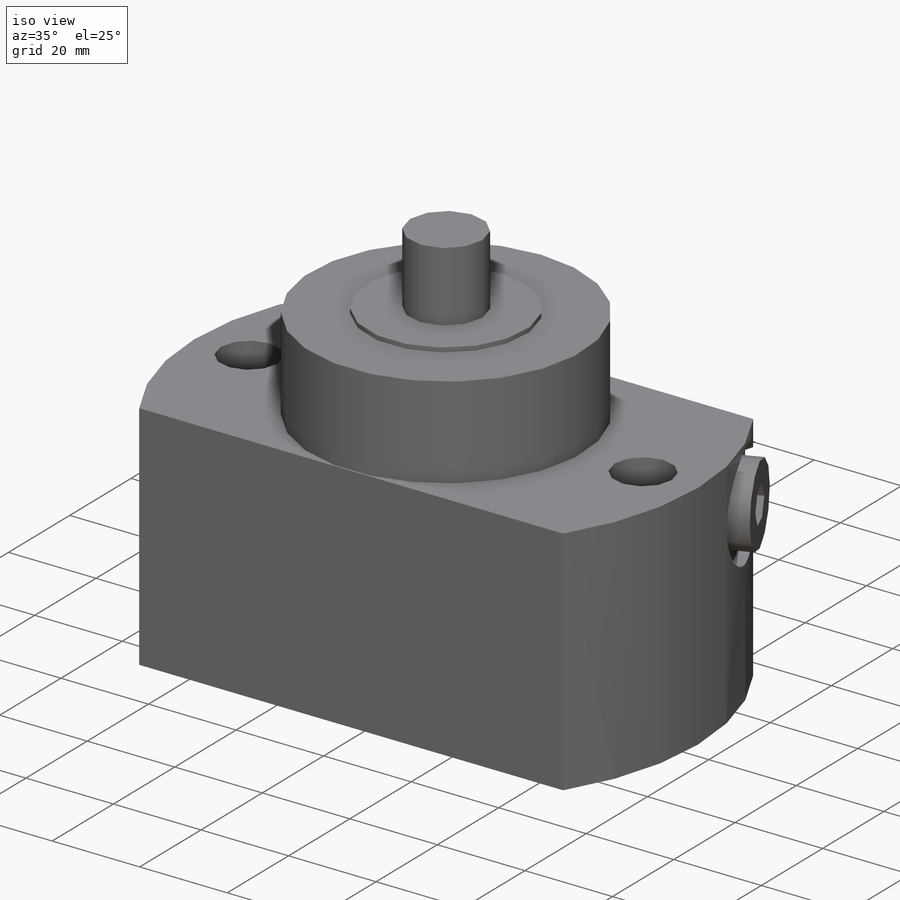
[diagram: iso view]
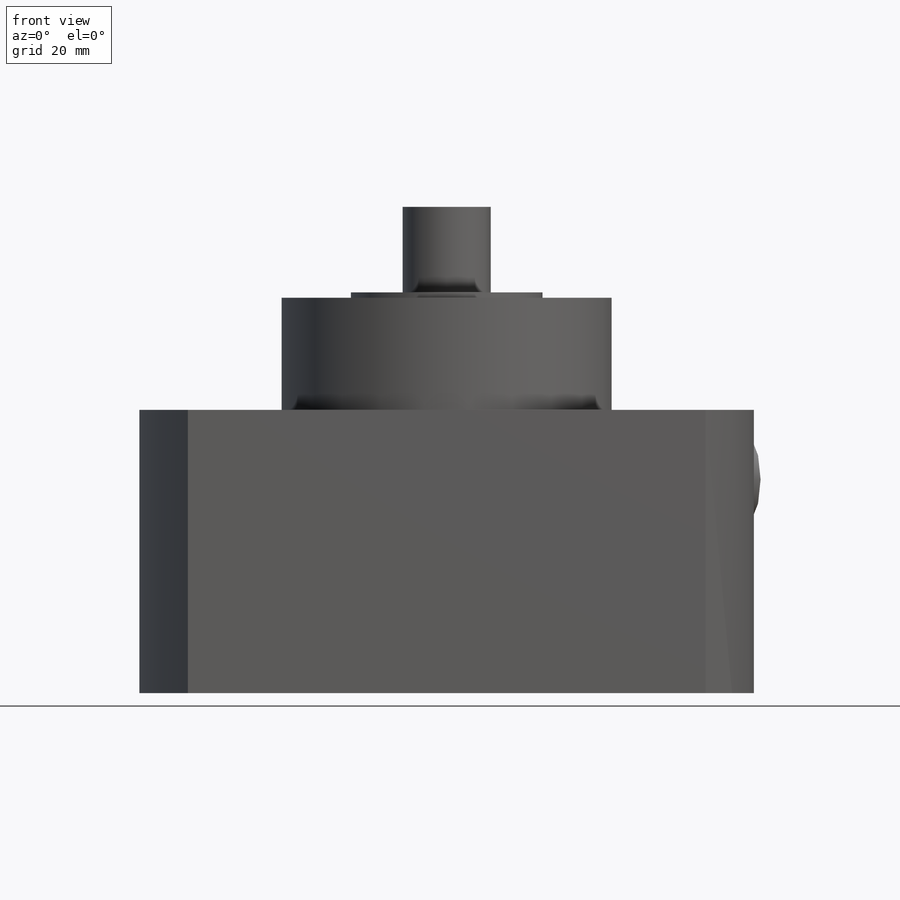
[diagram: front view]
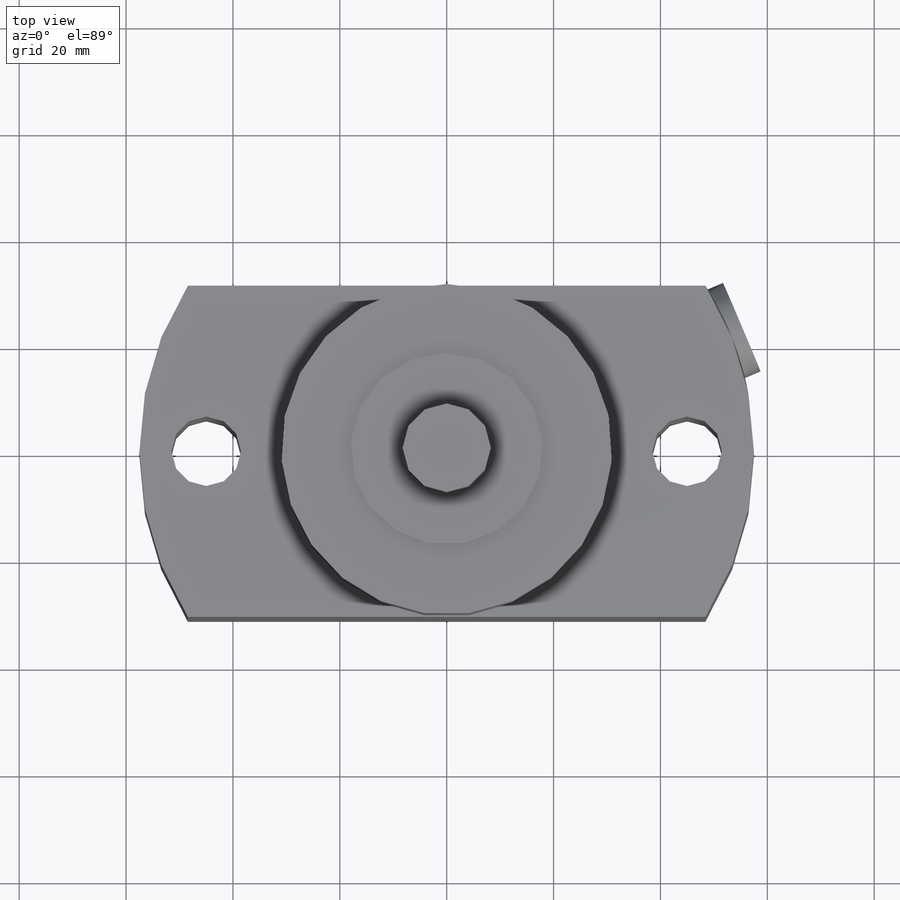
[diagram: top view]
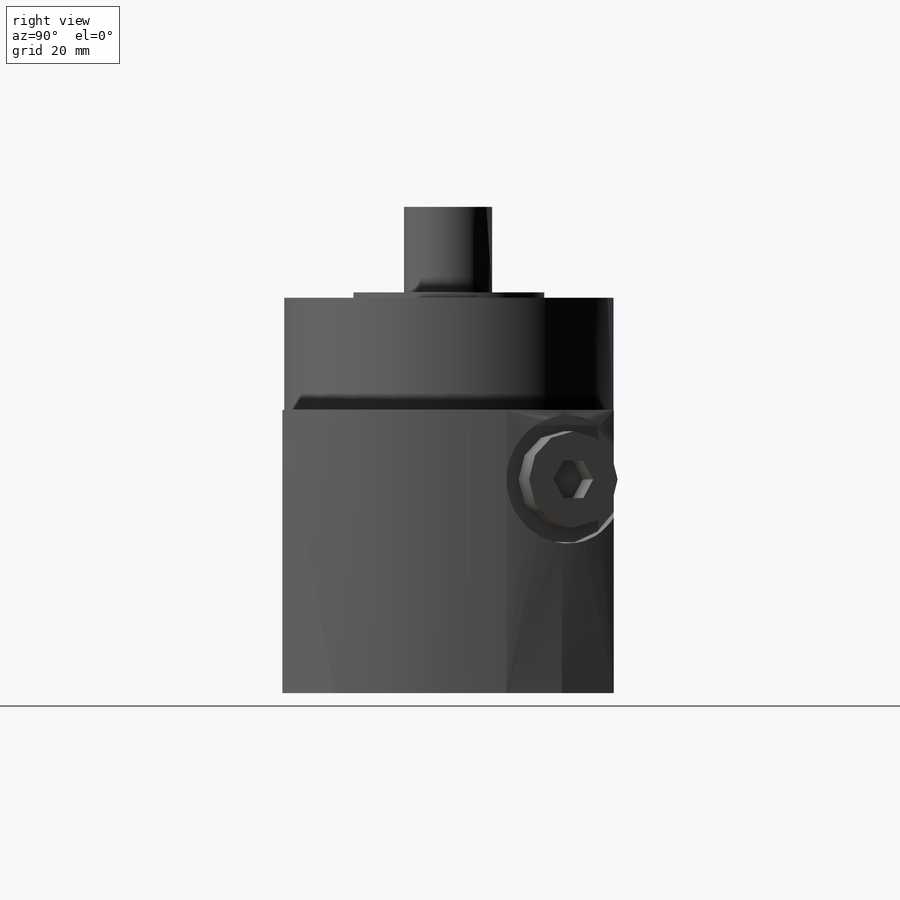
[diagram: right view]
SOLIDWORKS PART (.sldprt)
format: sldprt  version: not decoded by parser v0  size: 254,464 bytes
history: native  units: mm
features: sketch x10, cut_extrude x4, revolve x2, material x1, extrude x1, hole x1, plane x1, cut_revolve x1 (+13 scaffold rows collapsed)
feature tree (34):
  scaffold x13  (default folders/planes/origin — collapsed)
  material  "Alloy Steel"
  sketch  "Sketch1"  dims[D1=57.5mm D2=62.0mm]
  extrude  "Extrude1"  Depth=53mm
  sketch  "Sketch2"  dims[D1=16.5mm D2=16.0mm D3=75.0mm D4=1.0mm D5=36.0mm D6=61.9mm]
  revolve  "Revolve1"  Angle=360deg
  hole  "Hole1"  Diameter=13mm Depth=53mm
  sketch  "Sketch4"  dims[D1=90.0mm D2=40.0mm]
  sketch  "Sketch3"  dims[Diameter=13.0mm Depth=53.0mm]
  sketch  "Sketch5"  dims[D1=8.0mm]
  cut_extrude  "Cut-Extrude1"  Depth=4mm
  sketch  "Sketch6"  dims[D3=11.0mm D1=35.0mm D2=15.0mm]
  cut_extrude  "Cut-Extrude2"  Depth=3mm
  sketch  "Sketch7"  dims[D1=4.0mm]
  cut_extrude  "Cut-Extrude3"  Depth=33mm
  plane  "Plane1"
  sketch  "Sketch8"  dims[c1.D1=40.0mm c1.D2=2.5mm c1.D3=20.0mm c1.D4=11.445mm c1.D5=24.0mm c1.D6=~3.836843mm c2.D6=30.0deg c2.D7=13.157mm]
  cut_revolve  "Cut-Revolve1"  Angle=360deg
  sketch  "Sketch9"  dims[c1.D1=~4.740177mm c2.D1=45.0deg c2.D2=4.7225mm c2.D3=10.0mm c2.D4=5.0mm c2.D5=18.0mm]
  revolve  "Revolve2"  Angle=360deg
  sketch  "Sketch10"  dims[D1=7.0mm]
  cut_extrude  "Cut-Extrude4"  Depth=5mm
decode coverage: 19 of 19 modeling features carry decoded parameters
note: ~ marks probable driven/reference dimensions
note: suppression state not decoded; provenance and decode notes live in map.json
